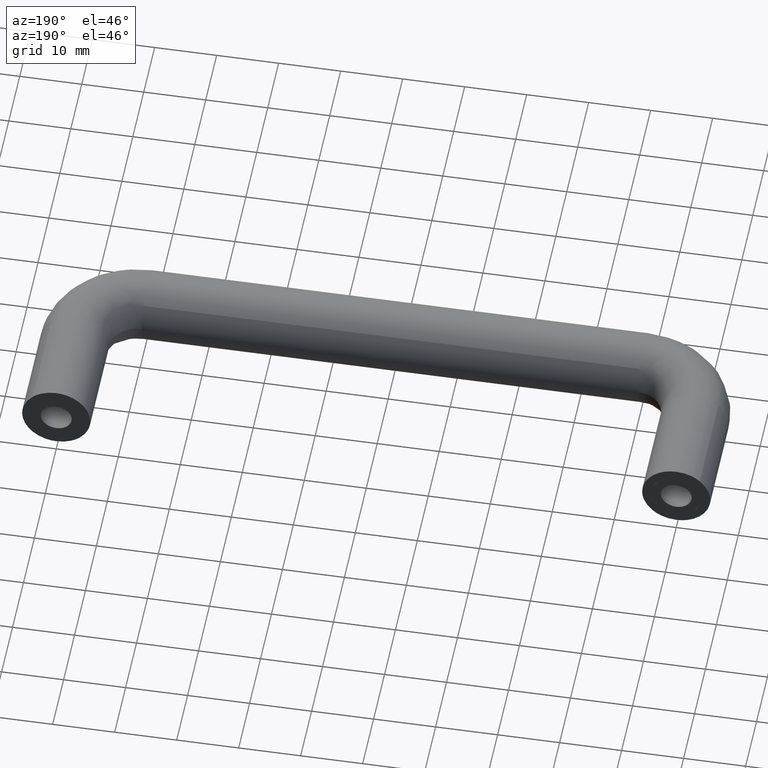
[diagram: clean part render]
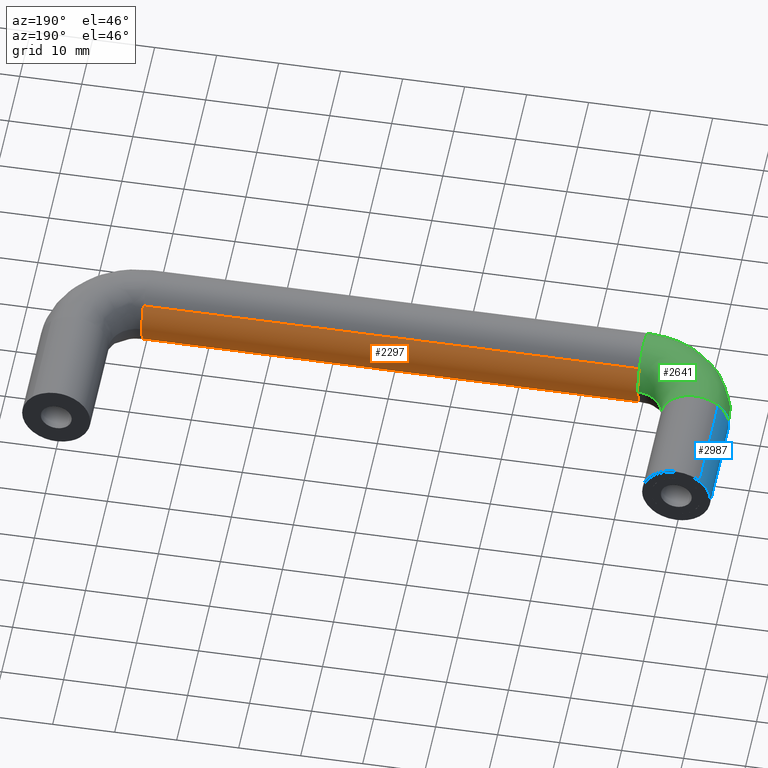
[diagram: same view with three faces highlighted in distinct colors, each labeled with its STEP entity id]
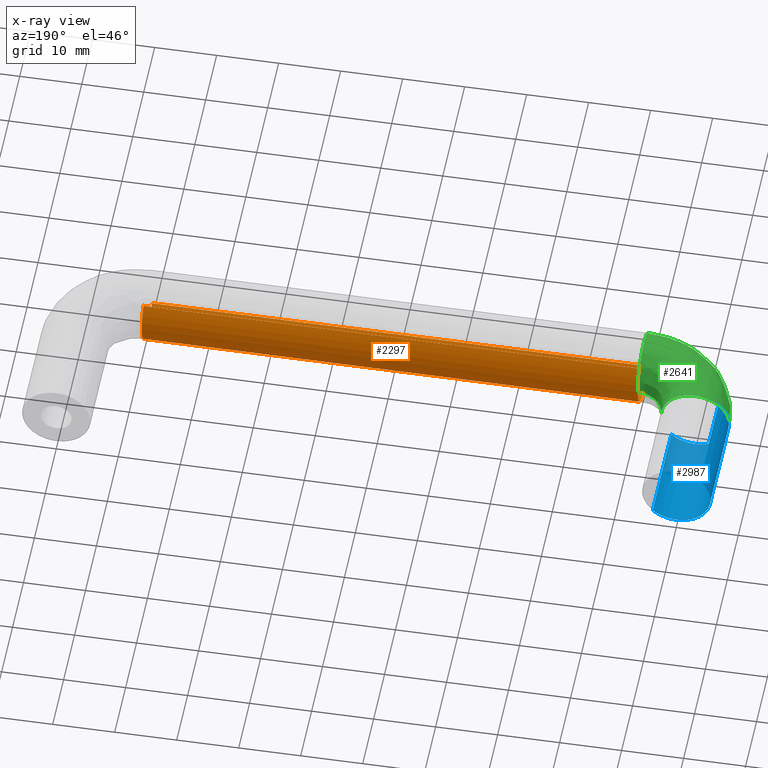
[diagram: x-ray of the same camera — body ghosted, the three highlighted faces saturated]
A machine part, auxiliary view with three faces highlighted in distinct colors.
The next image is the same camera in x-ray (body ghosted, the three faces saturated) — at least one of them is partly hidden behind the body in this view.
Their STEP definitions:

[orange] entity #2297 — the highlighted face is a freeform B-spline surface patch.
#1961=CARTESIAN_POINT('',(89.999994790527055,-21.499999999983569,-4.420587E-016));
#1962=VERTEX_POINT('',#1961);
#1976=CARTESIAN_POINT('',(89.999997298838110,-23.010440925835070,3.785950130926199));
#1977=VERTEX_POINT('',#1976);
#1978=CARTESIAN_POINT('',(89.999994790527055,-21.499999999983569,-4.420587E-016));
#1979=CARTESIAN_POINT('',(89.999995089053442,-21.499582535620291,0.630766519304619));
#1980=CARTESIAN_POINT('',(89.999995645306598,-21.674013615678881,1.630885446807443));
#1981=CARTESIAN_POINT('',(89.999996528553680,-22.276242903782990,2.893662221973532));
#1982=CARTESIAN_POINT('',(89.999997036732267,-22.740916852118399,3.502029512426377));
#1983=CARTESIAN_POINT('',(89.999997298838110,-23.010440925835070,3.785950130926199));
#1984=B_SPLINE_CURVE_WITH_KNOTS('',3,(#1978,#1979,#1980,#1981,#1982,#1983),.UNSPECIFIED.,.F.,.U.,(4,1,1,4),(0.000000028707868,1.892126855888447,3.001300705657795,4.175724669815051),.UNSPECIFIED.);
#1985=EDGE_CURVE('',#1962,#1977,#1984,.T.);
#2044=CARTESIAN_POINT('',(89.999999284689295,-30.989558855102441,-3.785949922371747));
#2045=VERTEX_POINT('',#2044);
#2056=CARTESIAN_POINT('',(89.999997395290492,-26.999998788549469,-5.499999999999867));
#2057=VERTEX_POINT('',#2056);
#2058=CARTESIAN_POINT('',(89.999999284689295,-30.989558855102441,-3.785949922371747));
#2059=CARTESIAN_POINT('',(89.999999155869176,-30.717548375497639,-4.072683681271575));
#2060=CARTESIAN_POINT('',(89.999998936320523,-30.253960925091391,-4.466002333108762));
#2061=CARTESIAN_POINT('',(89.999998491493614,-29.314686384613939,-5.027846515157720));
#2062=CARTESIAN_POINT('',(89.999998000851875,-28.278671813770021,-5.404453792590062));
#2063=CARTESIAN_POINT('',(89.999997582460026,-27.395217149369980,-5.500046842361616));
#2064=CARTESIAN_POINT('',(89.999997395290492,-26.999998788549469,-5.499999999999867));
#2065=B_SPLINE_CURVE_WITH_KNOTS('',3,(#2058,#2059,#2060,#2061,#2062,#2063,#2064),.UNSPECIFIED.,.F.,.U.,(4,1,1,1,4),(0.000000035020038,1.185674218414083,1.813389364962103,3.278036422434957,4.463710605848286),.UNSPECIFIED.);
#2066=EDGE_CURVE('',#2045,#2057,#2065,.T.);
#2068=CARTESIAN_POINT('',(89.999997395290492,-26.999998788549469,-5.499999999999867));
#2069=CARTESIAN_POINT('',(89.999997150212607,-26.482512844814050,-5.500194382752214));
#2070=CARTESIAN_POINT('',(89.999996756037135,-25.650205338174121,-5.381602379248483));
#2071=CARTESIAN_POINT('',(89.999996207239363,-24.491410063625331,-4.934609812305524));
#2072=CARTESIAN_POINT('',(89.999995790620119,-23.611713221921018,-4.377558858743202));
#2073=CARTESIAN_POINT('',(89.999995465335147,-22.924867318311868,-3.723534852909106));
#2074=CARTESIAN_POINT('',(89.999995215763917,-22.397894335690911,-3.048283517251016));
#2075=CARTESIAN_POINT('',(89.999994994328574,-21.930332712216710,-2.223088995686013));
#2076=CARTESIAN_POINT('',(89.999994829574206,-21.582448366572802,-1.169898601455442));
#2077=CARTESIAN_POINT('',(89.999994790501688,-21.499945162138658,-0.382468295907506));
#2078=CARTESIAN_POINT('',(89.999994790527055,-21.499999999983569,-4.420587E-016));
#2079=B_SPLINE_CURVE_WITH_KNOTS('',3,(#2068,#2069,#2070,#2071,#2072,#2073,#2074,#2075,#2076,#2077,#2078),.UNSPECIFIED.,.F.,.U.,(4,1,1,1,1,1,1,1,4),(0.000000121129078,1.552388297675279,2.497342906656587,3.712276537823406,4.657158033757954,5.332135782046844,6.277083893414975,7.492030230088159,8.639433323033613),.UNSPECIFIED.);
#2080=EDGE_CURVE('',#2057,#1962,#2079,.T.);
#2223=CARTESIAN_POINT('',(7.999999999736905,-30.989559040557179,-3.785950166315646));
#2224=CARTESIAN_POINT('',(7.999999999736907,-27.203608874241532,-7.775509206883227));
#2225=CARTESIAN_POINT('',(7.999999999736905,-23.214049833673950,-3.989559040567581));
#2226=CARTESIAN_POINT('',(7.999999999736907,-19.224490793106366,-0.203608874251935));
#2227=CARTESIAN_POINT('',(7.999999999736905,-23.010440959422020,3.785950166315646));
#2228=CARTESIAN_POINT('',(92.050000000063037,-30.989559040557179,-3.785950166315646));
#2229=CARTESIAN_POINT('',(92.050000000063037,-27.203608874241532,-7.775509206883227));
#2230=CARTESIAN_POINT('',(92.050000000063037,-23.214049833673950,-3.989559040567581));
#2231=CARTESIAN_POINT('',(92.050000000063037,-19.224490793106366,-0.203608874251935));
#2232=CARTESIAN_POINT('',(92.050000000063037,-23.010440959422020,3.785950166315646));
#2240=(BOUNDED_SURFACE()B_SPLINE_SURFACE(2,1,((#2223,#2228),(#2224,#2229),(#2225,#2230),(#2226,#2231),(#2227,#2232)),.UNSPECIFIED.,.F.,.F.,.U.)B_SPLINE_SURFACE_WITH_KNOTS((3,2,3),(2,2),(0.0,9.112698372208090,18.225396744416180),(0.0,84.050000000326136),.UNSPECIFIED.)GEOMETRIC_REPRESENTATION_ITEM()RATIONAL_B_SPLINE_SURFACE(((1.0,1.0),(0.707106781186548,0.707106781186548),(1.0,1.0),(0.707106781186548,0.707106781186548),(1.0,1.0)))REPRESENTATION_ITEM('')SURFACE());
#2241=ORIENTED_EDGE('',*,*,#2066,.F.);
#2242=CARTESIAN_POINT('',(9.999999999873081,-30.989558854687839,-3.785949922808328));
#2243=VERTEX_POINT('',#2242);
#2244=CARTESIAN_POINT('',(9.999999999873081,-30.989558854687839,-3.785949922808328));
#2245=CARTESIAN_POINT('',(89.999999284689295,-30.989558855102441,-3.785949922371747));
#2246=QUASI_UNIFORM_CURVE('',1,(#2244,#2245),.UNSPECIFIED.,.F.,.U.);
#2247=EDGE_CURVE('',#2243,#2045,#2246,.T.);
#2248=ORIENTED_EDGE('',*,*,#2247,.F.);
#2249=CARTESIAN_POINT('',(9.999999999819094,-26.999998788552482,-5.499999999999867));
#2250=VERTEX_POINT('',#2249);
#2251=CARTESIAN_POINT('',(9.999999999873081,-30.989558854687839,-3.785949922808328));
#2252=CARTESIAN_POINT('',(9.999999999869841,-30.749532216901471,-4.038919720463778));
#2253=CARTESIAN_POINT('',(9.999999999861467,-30.133132465857120,-4.575758539909313));
#2254=CARTESIAN_POINT('',(9.999999999847827,-29.122420377932809,-5.120839638104645));
#2255=CARTESIAN_POINT('',(9.999999999832880,-28.022906857648650,-5.435651424795697));
#2256=CARTESIAN_POINT('',(9.999999999823848,-27.348726036600262,-5.500037968386583));
#2257=CARTESIAN_POINT('',(9.999999999819094,-26.999998788552482,-5.499999999999867));
#2258=B_SPLINE_CURVE_WITH_KNOTS('',3,(#2251,#2252,#2253,#2254,#2255,#2256,#2257),.UNSPECIFIED.,.F.,.U.,(4,1,1,1,4),(0.000000035019245,1.046181136878325,2.441086695500839,3.417529503364413,4.463710605242854),.UNSPECIFIED.);
#2259=EDGE_CURVE('',#2243,#2250,#2258,.T.);
#2260=ORIENTED_EDGE('',*,*,#2259,.T.);
#2261=CARTESIAN_POINT('',(9.999999999744667,-21.499999999989601,-4.419640E-016));
#2262=VERTEX_POINT('',#2261);
#2263=CARTESIAN_POINT('',(9.999999999819094,-26.999998788552482,-5.499999999999867));
#2264=CARTESIAN_POINT('',(9.999999999813051,-26.550019748065949,-5.500129686792121));
#2265=CARTESIAN_POINT('',(9.999999999804151,-25.897633294907369,-5.419456036741389));
#2266=CARTESIAN_POINT('',(9.999999999791649,-24.972180594215239,-5.132504422196470));
#2267=CARTESIAN_POINT('',(9.999999999782036,-24.257702465410539,-4.794588908478701));
#2268=CARTESIAN_POINT('',(9.999999999770868,-23.439173202544278,-4.233055823004165));
#2269=CARTESIAN_POINT('',(9.999999999761791,-22.766936980932741,-3.560827944745989));
#2270=CARTESIAN_POINT('',(9.999999999753943,-22.179903888642521,-2.705087160750034));
#2271=CARTESIAN_POINT('',(9.999999999746857,-21.661936154531940,-1.574685164114691));
#2272=CARTESIAN_POINT('',(9.999999999744624,-21.499644796525569,-0.607504558879499));
#2273=CARTESIAN_POINT('',(9.999999999744667,-21.499999999989601,-4.419640E-016));
#2274=B_SPLINE_CURVE_WITH_KNOTS('',3,(#2263,#2264,#2265,#2266,#2267,#2268,#2269,#2270,#2271,#2272,#2273),.UNSPECIFIED.,.F.,.U.,(4,1,1,1,1,1,1,1,4),(0.000000121127497,1.349898503220993,1.957368716626248,2.902323327563132,3.712276537821291,4.927161012693494,5.737113931274324,6.817057036695507,8.639433323029950),.UNSPECIFIED.);
#2275=EDGE_CURVE('',#2250,#2262,#2274,.T.);
#2276=ORIENTED_EDGE('',*,*,#2275,.T.);
#2277=CARTESIAN_POINT('',(9.999999999867605,-23.010440926251359,3.785950131361060));
#2278=VERTEX_POINT('',#2277);
#2279=CARTESIAN_POINT('',(9.999999999744667,-21.499999999989601,-4.419640E-016));
#2280=CARTESIAN_POINT('',(9.999999999755259,-21.499886738454329,0.456725222116623));
#2281=CARTESIAN_POINT('',(9.999999999779709,-21.617106474110699,1.391875831001043));
#2282=CARTESIAN_POINT('',(9.999999999822036,-22.137254365226038,2.695723247719012));
#2283=CARTESIAN_POINT('',(9.999999999852619,-22.695990383300909,3.454716881995495));
#2284=CARTESIAN_POINT('',(9.999999999867605,-23.010440926251359,3.785950131361060));
#2285=B_SPLINE_CURVE_WITH_KNOTS('',3,(#2279,#2280,#2281,#2282,#2283,#2284),.UNSPECIFIED.,.F.,.U.,(4,1,1,4),(0.000000028707958,1.370164146732889,2.805560552388104,4.175724670413069),.UNSPECIFIED.);
#2286=EDGE_CURVE('',#2262,#2278,#2285,.T.);
#2287=ORIENTED_EDGE('',*,*,#2286,.T.);
#2288=CARTESIAN_POINT('',(9.999999999867605,-23.010440926251359,3.785950131361060));
#2289=CARTESIAN_POINT('',(89.999997298838110,-23.010440925835070,3.785950130926199));
#2290=QUASI_UNIFORM_CURVE('',1,(#2288,#2289),.UNSPECIFIED.,.F.,.U.);
#2291=EDGE_CURVE('',#2278,#1977,#2290,.T.);
#2292=ORIENTED_EDGE('',*,*,#2291,.T.);
#2293=ORIENTED_EDGE('',*,*,#1985,.F.);
#2294=ORIENTED_EDGE('',*,*,#2080,.F.);
#2295=EDGE_LOOP('',(#2241,#2248,#2260,#2276,#2287,#2292,#2293,#2294));
#2296=FACE_OUTER_BOUND('',#2295,.T.);
#2297=ADVANCED_FACE('',(#2296),#2240,.T.);

[blue] entity #2987 — the highlighted face is a freeform B-spline surface patch.
#2566=CARTESIAN_POINT('',(-5.499999999998872,-16.999995823094832,-6.735335E-016));
#2567=VERTEX_POINT('',#2566);
#2618=CARTESIAN_POINT('',(-3.785950131360987,-16.999997988854972,3.989559073738165));
#2619=VERTEX_POINT('',#2618);
#2629=CARTESIAN_POINT('',(-3.785950131360987,-16.999997988854972,3.989559073738165));
#2630=CARTESIAN_POINT('',(-4.072684983078398,-16.999997776690780,3.717551831426260));
#2631=CARTESIAN_POINT('',(-4.571950902433917,-16.999997363696622,3.129182511704759));
#2632=CARTESIAN_POINT('',(-5.093269707697251,-16.999996798671521,2.162487159022841));
#2633=CARTESIAN_POINT('',(-5.421981005855600,-16.999996276448940,1.115905918499475));
#2634=CARTESIAN_POINT('',(-5.500057061425372,-16.999995973146770,0.395224413446325));
#2635=CARTESIAN_POINT('',(-5.499999999998872,-16.999995823094832,-6.735335E-016));
#2636=B_SPLINE_CURVE_WITH_KNOTS('',3,(#2629,#2630,#2631,#2632,#2633,#2634,#2635),.UNSPECIFIED.,.F.,.U.,(4,1,1,1,4),(0.000000035014806,1.185673928930440,2.301581176913438,3.278035622093565,4.463709516009198),.UNSPECIFIED.);
#2637=EDGE_CURVE('',#2619,#2567,#2636,.T.);
#2672=CARTESIAN_POINT('',(0.000001211437679,-16.999997911839870,-5.499999999999867));
#2673=VERTEX_POINT('',#2672);
#2674=CARTESIAN_POINT('',(-5.499999999998872,-16.999995823094832,-6.735335E-016));
#2675=CARTESIAN_POINT('',(-5.500063172048255,-16.999995823070801,-0.404970562915274));
#2676=CARTESIAN_POINT('',(-5.402704394757319,-16.999995860044990,-1.282404451269414));
#2677=CARTESIAN_POINT('',(-4.990792966374575,-16.999996016477251,-2.411967482995220));
#2678=CARTESIAN_POINT('',(-4.422826467285386,-16.999996232174929,-3.308565356066332));
#2679=CARTESIAN_POINT('',(-3.869918705280671,-16.999996442153630,-3.933857872118311));
#2680=CARTESIAN_POINT('',(-3.183362951232315,-16.999996702888069,-4.518850808678644));
#2681=CARTESIAN_POINT('',(-2.287578983097599,-16.999997043081610,-5.048372602862949));
#2682=CARTESIAN_POINT('',(-1.169895505650755,-16.999997467546301,-5.417562298992621));
#2683=CARTESIAN_POINT('',(-0.382466443077977,-16.999997766589370,-5.500044870206316));
#2684=CARTESIAN_POINT('',(0.000001211437679,-16.999997911839870,-5.499999999999867));
#2685=B_SPLINE_CURVE_WITH_KNOTS('',3,(#2674,#2675,#2676,#2677,#2678,#2679,#2680,#2681,#2682,#2683,#2684),.UNSPECIFIED.,.F.,.U.,(4,1,1,1,1,1,1,1,4),(0.000000120710959,1.214916323066688,2.632328653273003,3.577295173254150,4.387176594642630,5.129648567326703,6.277084885903721,7.492031414489353,8.639434688610267),.UNSPECIFIED.);
#2686=EDGE_CURVE('',#2567,#2673,#2685,.T.);
#2688=CARTESIAN_POINT('',(3.785950339472700,-16.999999349611780,-3.989559293196833));
#2689=VERTEX_POINT('',#2688);
#2690=CARTESIAN_POINT('',(0.000001211437679,-16.999997911839870,-5.499999999999867));
#2691=CARTESIAN_POINT('',(0.587254015728552,-16.999998134858028,-5.500339378701812));
#2692=CARTESIAN_POINT('',(1.565719004488024,-16.999998506445259,-5.341716700638560));
#2693=CARTESIAN_POINT('',(2.839804574596728,-16.999998990298291,-4.761787340351042));
#2694=CARTESIAN_POINT('',(3.486263403968867,-16.999999235801269,-4.274068272221187));
#2695=CARTESIAN_POINT('',(3.785950339472700,-16.999999349611780,-3.989559293196833));
#2696=B_SPLINE_CURVE_WITH_KNOTS('',3,(#2690,#2691,#2692,#2693,#2694,#2695),.UNSPECIFIED.,.F.,.U.,(4,1,1,4),(0.000000028711846,1.761645322914895,2.936051583304519,4.175723573659115),.UNSPECIFIED.);
#2697=EDGE_CURVE('',#2673,#2689,#2696,.T.);
#2870=CARTESIAN_POINT('',(3.785949922808327,-3.885781E-016,-3.989558854698237));
#2871=VERTEX_POINT('',#2870);
#2872=CARTESIAN_POINT('',(3.785949922808327,-3.885781E-016,-3.989558854698237));
#2873=CARTESIAN_POINT('',(3.785950339472700,-16.999999349611780,-3.989559293196833));
#2874=QUASI_UNIFORM_CURVE('',1,(#2872,#2873),.UNSPECIFIED.,.F.,.U.);
#2875=EDGE_CURVE('',#2871,#2689,#2874,.T.);
#2904=CARTESIAN_POINT('',(-3.785949922382049,-3.885781E-016,3.989558855102763));
#2905=VERTEX_POINT('',#2904);
#2915=CARTESIAN_POINT('',(-3.785949922382049,-3.885781E-016,3.989558855102763));
#2916=CARTESIAN_POINT('',(-3.785950131360987,-16.999997988854972,3.989559073738165));
#2917=QUASI_UNIFORM_CURVE('',1,(#2915,#2916),.UNSPECIFIED.,.F.,.U.);
#2918=EDGE_CURVE('',#2905,#2619,#2917,.T.);
#2925=CARTESIAN_POINT('',(-3.785950166315646,0.425000000014600,3.989559040567581));
#2926=CARTESIAN_POINT('',(-7.775509206883227,0.425000000014600,0.203608874251935));
#2927=CARTESIAN_POINT('',(-3.989559040567581,0.425000000014600,-3.785950166315646));
#2928=CARTESIAN_POINT('',(-0.203608874251935,0.425000000014600,-7.775509206883227));
#2929=CARTESIAN_POINT('',(3.785950166315646,0.425000000014600,-3.989559040567581));
#2930=CARTESIAN_POINT('',(-3.785950166315646,-17.435625000598950,3.989559040567581));
#2931=CARTESIAN_POINT('',(-7.775509206883227,-17.435625000598950,0.203608874251935));
#2932=CARTESIAN_POINT('',(-3.989559040567581,-17.435625000598950,-3.785950166315646));
#2933=CARTESIAN_POINT('',(-0.203608874251935,-17.435625000598950,-7.775509206883227));
#2934=CARTESIAN_POINT('',(3.785950166315646,-17.435625000598950,-3.989559040567581));
#2942=(BOUNDED_SURFACE()B_SPLINE_SURFACE(2,1,((#2925,#2930),(#2926,#2931),(#2927,#2932),(#2928,#2933),(#2929,#2934)),.UNSPECIFIED.,.F.,.F.,.U.)B_SPLINE_SURFACE_WITH_KNOTS((3,2,3),(2,2),(0.0,9.112698372208088,18.225396744416180),(0.0,17.860625000613549),.UNSPECIFIED.)GEOMETRIC_REPRESENTATION_ITEM()RATIONAL_B_SPLINE_SURFACE(((1.0,1.0),(0.707106781186548,0.707106781186548),(1.0,1.0),(0.707106781186548,0.707106781186548),(1.0,1.0)))REPRESENTATION_ITEM('')SURFACE());
#2943=ORIENTED_EDGE('',*,*,#2697,.F.);
#2944=ORIENTED_EDGE('',*,*,#2686,.F.);
#2945=ORIENTED_EDGE('',*,*,#2637,.F.);
#2946=ORIENTED_EDGE('',*,*,#2918,.F.);
#2947=CARTESIAN_POINT('',(-5.499999999999867,0.0,-0.000001211437118));
#2948=VERTEX_POINT('',#2947);
#2949=CARTESIAN_POINT('',(-3.785949922382049,-3.885781E-016,3.989558855102763));
#2950=CARTESIAN_POINT('',(-4.173996871329841,-3.527432E-016,3.621639519477811));
#2951=CARTESIAN_POINT('',(-4.754166590046509,-2.807286E-016,2.882260415295427));
#2952=CARTESIAN_POINT('',(-5.353624262969108,-1.471690E-016,1.510994131879092));
#2953=CARTESIAN_POINT('',(-5.500294146071942,-5.434861E-017,0.557999971286713));
#2954=CARTESIAN_POINT('',(-5.499999999999867,0.0,-0.000001211437118));
#2955=B_SPLINE_CURVE_WITH_KNOTS('',3,(#2949,#2950,#2951,#2952,#2953,#2954),.UNSPECIFIED.,.F.,.U.,(4,1,1,4),(0.000000035018964,1.604152471604997,2.789807195824196,4.463710605830541),.UNSPECIFIED.);
#2956=EDGE_CURVE('',#2905,#2948,#2955,.T.);
#2957=ORIENTED_EDGE('',*,*,#2956,.T.);
#2958=CARTESIAN_POINT('',(0.0,0.0,-5.500000000000000));
#2959=VERTEX_POINT('',#2958);
#2960=CARTESIAN_POINT('',(-5.499999999999867,0.0,-0.000001211437118));
#2961=CARTESIAN_POINT('',(-5.500275986935168,0.0,-0.540006236550243));
#2962=CARTESIAN_POINT('',(-5.386375451744979,0.0,-1.304775468941080));
#2963=CARTESIAN_POINT('',(-4.970168195931266,0.0,-2.424631905008403));
#2964=CARTESIAN_POINT('',(-4.451521088297848,0.0,-3.302116271395947));
#2965=CARTESIAN_POINT('',(-3.712925618572237,0.0,-4.097103538271920));
#2966=CARTESIAN_POINT('',(-2.882838872145862,0.0,-4.720694632167060));
#2967=CARTESIAN_POINT('',(-1.991058125069044,0.0,-5.162755665805083));
#2968=CARTESIAN_POINT('',(-0.989911994235949,0.0,-5.439764097749090));
#2969=CARTESIAN_POINT('',(-0.337472997966175,0.0,-5.500031976902027));
#2970=CARTESIAN_POINT('',(0.0,0.0,-5.500000000000000));
#2971=B_SPLINE_CURVE_WITH_KNOTS('',3,(#2960,#2961,#2962,#2963,#2964,#2965,#2966,#2967,#2968,#2969,#2970),.UNSPECIFIED.,.F.,.U.,(4,1,1,1,1,1,1,1,4),(0.000000121132809,1.619892835452266,2.294852423901075,3.577294608334221,4.657158033758558,5.534624620948923,6.682066155091198,7.627014265994213,8.639433323029904),.UNSPECIFIED.);
#2972=EDGE_CURVE('',#2948,#2959,#2971,.T.);
#2973=ORIENTED_EDGE('',*,*,#2972,.T.);
#2974=CARTESIAN_POINT('',(0.0,0.0,-5.500000000000000));
#2975=CARTESIAN_POINT('',(0.391477375142764,-4.018001E-017,-5.500064228811420));
#2976=CARTESIAN_POINT('',(1.109143399745959,-1.138390E-016,-5.423049250909813));
#2977=CARTESIAN_POINT('',(2.047083842848362,-2.101063E-016,-5.130323865410255));
#2978=CARTESIAN_POINT('',(2.944616254088261,-3.022262E-016,-4.682682878265067));
#2979=CARTESIAN_POINT('',(3.486263929938964,-3.578192E-016,-4.274071193445455));
#2980=CARTESIAN_POINT('',(3.785949922808327,-3.885781E-016,-3.989558854698237));
#2981=B_SPLINE_CURVE_WITH_KNOTS('',3,(#2974,#2975,#2976,#2977,#2978,#2979,#2980),.UNSPECIFIED.,.F.,.U.,(4,1,1,1,4),(0.000000028705074,1.174423960607387,2.153089971328474,2.936052273396637,4.175724555100175),.UNSPECIFIED.);
#2982=EDGE_CURVE('',#2959,#2871,#2981,.T.);
#2983=ORIENTED_EDGE('',*,*,#2982,.T.);
#2984=ORIENTED_EDGE('',*,*,#2875,.T.);
#2985=EDGE_LOOP('',(#2943,#2944,#2945,#2946,#2957,#2973,#2983,#2984));
#2986=FACE_OUTER_BOUND('',#2985,.T.);
#2987=ADVANCED_FACE('',(#2986),#2942,.T.);

[green] entity #2641 — the highlighted face is a freeform B-spline surface patch.
#2261=CARTESIAN_POINT('',(9.999999999744667,-21.499999999989601,-4.419640E-016));
#2262=VERTEX_POINT('',#2261);
#2277=CARTESIAN_POINT('',(9.999999999867605,-23.010440926251359,3.785950131361060));
#2278=VERTEX_POINT('',#2277);
#2279=CARTESIAN_POINT('',(9.999999999744667,-21.499999999989601,-4.419640E-016));
#2280=CARTESIAN_POINT('',(9.999999999755259,-21.499886738454329,0.456725222116623));
#2281=CARTESIAN_POINT('',(9.999999999779709,-21.617106474110699,1.391875831001043));
#2282=CARTESIAN_POINT('',(9.999999999822036,-22.137254365226038,2.695723247719012));
#2283=CARTESIAN_POINT('',(9.999999999852619,-22.695990383300909,3.454716881995495));
#2284=CARTESIAN_POINT('',(9.999999999867605,-23.010440926251359,3.785950131361060));
#2285=B_SPLINE_CURVE_WITH_KNOTS('',3,(#2279,#2280,#2281,#2282,#2283,#2284),.UNSPECIFIED.,.F.,.U.,(4,1,1,4),(0.000000028707958,1.370164146732889,2.805560552388104,4.175724670413069),.UNSPECIFIED.);
#2286=EDGE_CURVE('',#2262,#2278,#2285,.T.);
#2320=CARTESIAN_POINT('',(10.0,-26.999999999989601,5.500000000000000));
#2321=VERTEX_POINT('',#2320);
#2322=CARTESIAN_POINT('',(9.999999999867605,-23.010440926251359,3.785950131361060));
#2323=CARTESIAN_POINT('',(9.999999999879048,-23.250467799035981,4.038920241081647));
#2324=CARTESIAN_POINT('',(9.999999999905830,-23.866867039692281,4.575757044493593));
#2325=CARTESIAN_POINT('',(9.999999999941915,-24.877578573187570,5.120842703011409));
#2326=CARTESIAN_POINT('',(9.999999999974802,-25.977093139127071,5.435645817733579));
#2327=CARTESIAN_POINT('',(9.999999999991887,-26.651271925940240,5.500042449196286));
#2328=CARTESIAN_POINT('',(10.0,-26.999999999989601,5.500000000000000));
#2329=B_SPLINE_CURVE_WITH_KNOTS('',3,(#2322,#2323,#2324,#2325,#2326,#2327,#2328),.UNSPECIFIED.,.F.,.U.,(4,1,1,1,4),(0.000000035016079,1.046180881597005,2.441086099844327,3.417528669427553,4.463709516009164),.UNSPECIFIED.);
#2330=EDGE_CURVE('',#2278,#2321,#2329,.T.);
#2332=CARTESIAN_POINT('',(9.999999999893522,-32.499999999989598,-6.735335E-016));
#2333=VERTEX_POINT('',#2332);
#2334=CARTESIAN_POINT('',(10.0,-26.999999999989601,5.500000000000000));
#2335=CARTESIAN_POINT('',(9.999999999996948,-27.314968421135909,5.500014721346220));
#2336=CARTESIAN_POINT('',(9.999999999989390,-28.034914371888320,5.438017617955295));
#2337=CARTESIAN_POINT('',(9.999999999974449,-29.230713345872701,5.091440074642777));
#2338=CARTESIAN_POINT('',(9.999999999957607,-30.326146239675040,4.443945828187533));
#2339=CARTESIAN_POINT('',(9.999999999942407,-31.123134648145019,3.675489527473059));
#2340=CARTESIAN_POINT('',(9.999999999930537,-31.651332962480399,2.972361551911824));
#2341=CARTESIAN_POINT('',(9.999999999917762,-32.114183056576842,2.119296358087973));
#2342=CARTESIAN_POINT('',(9.999999999904874,-32.429427036728733,1.102423726611293));
#2343=CARTESIAN_POINT('',(9.999999999896794,-32.500024255590283,0.337469225306783));
#2344=CARTESIAN_POINT('',(9.999999999893522,-32.499999999989598,-6.735335E-016));
#2345=B_SPLINE_CURVE_WITH_KNOTS('',3,(#2334,#2335,#2336,#2337,#2338,#2339,#2340,#2341,#2342,#2343,#2344),.UNSPECIFIED.,.F.,.U.,(4,1,1,1,1,1,1,1,4),(0.000000120919900,0.944916700280082,2.159859307134513,3.712276831383561,4.724676596645427,5.467120250703147,6.344582949207419,7.627014869042590,8.639434005820240),.UNSPECIFIED.);
#2346=EDGE_CURVE('',#2321,#2333,#2345,.T.);
#2537=CARTESIAN_POINT('',(-5.462881406599398,-15.927946547291246,-0.153762057305220));
#2538=CARTESIAN_POINT('',(-6.695593203846713,-33.708101334698597,-0.153762057305220));
#2539=CARTESIAN_POINT('',(11.083633411053464,-32.462074202063810,-0.153762057305220));
#2540=CARTESIAN_POINT('',(-5.462881406599398,-15.927946547291246,-0.077328764515603));
#2541=CARTESIAN_POINT('',(-6.695593203846713,-33.708101334698597,-0.077328764515603));
#2542=CARTESIAN_POINT('',(11.083633411053469,-32.462074202063810,-0.077328764515603));
#2543=CARTESIAN_POINT('',(-5.462881406599399,-15.927946547291254,5.499999999999998));
#2544=CARTESIAN_POINT('',(-6.695593203846714,-33.708101334698583,5.499999999999998));
#2545=CARTESIAN_POINT('',(11.083633411053462,-32.462074202063796,5.499999999999999));
#2546=CARTESIAN_POINT('',(0.023947479613291,-16.308352611151950,5.499999999999998));
#2547=CARTESIAN_POINT('',(-0.771350454094655,-27.779420215930880,5.499999999999999));
#2548=CARTESIAN_POINT('',(10.699118329711911,-26.975531743263275,5.499999999999998));
#2549=CARTESIAN_POINT('',(5.510776365825982,-16.688758675012657,5.499999999999998));
#2550=CARTESIAN_POINT('',(5.152892295657404,-21.850739097163185,5.499999999999998));
#2551=CARTESIAN_POINT('',(10.314603248370361,-21.488989284462765,5.499999999999999));
#2552=CARTESIAN_POINT('',(5.510776365825981,-16.688758675012657,-0.077328764515604));
#2553=CARTESIAN_POINT('',(5.152892295657407,-21.850739097163181,-0.077328764515604));
#2554=CARTESIAN_POINT('',(10.314603248370362,-21.488989284462761,-0.077328764515604));
#2555=CARTESIAN_POINT('',(5.510776365825981,-16.688758675012654,-0.153762057305221));
#2556=CARTESIAN_POINT('',(5.152892295657406,-21.850739097163178,-0.153762057305221));
#2557=CARTESIAN_POINT('',(10.314603248370362,-21.488989284462754,-0.153762057305221));
#2565=(BOUNDED_SURFACE()B_SPLINE_SURFACE(2,2,((#2537,#2540,#2543,#2546,#2549,#2552,#2555),(#2538,#2541,#2544,#2547,#2550,#2553,#2556),(#2539,#2542,#2545,#2548,#2551,#2554,#2557)),.UNSPECIFIED.,.F.,.F.,.U.)B_SPLINE_SURFACE_WITH_KNOTS((3,3),(3,1,2,1,3),(0.0,28.246576867094841),(0.0,0.182253967444162,9.294952339652250,18.407650711860342,18.589904679304500),.UNSPECIFIED.)GEOMETRIC_REPRESENTATION_ITEM()RATIONAL_B_SPLINE_SURFACE(((0.932283974128833,0.926886021991280,0.651590462976073,0.921488069853727,0.651590462976073,0.926886021991280,0.932283974128833),(0.608398349254636,0.604875704587370,0.425220826556786,0.601353059920104,0.425220826556786,0.604875704587370,0.608398349254636),(0.921984269463391,0.916645952924387,0.644391809435189,0.911307636385383,0.644391809435189,0.916645952924387,0.921984269463391)))REPRESENTATION_ITEM('')SURFACE());
#2566=CARTESIAN_POINT('',(-5.499999999998872,-16.999995823094832,-6.735335E-016));
#2567=VERTEX_POINT('',#2566);
#2568=CARTESIAN_POINT('',(-5.499999999998872,-16.999995823094832,-6.735335E-016));
#2569=CARTESIAN_POINT('',(-5.500088810981096,-17.919365233648069,-6.735335E-016));
#2570=CARTESIAN_POINT('',(-5.367015257662652,-19.409332965695722,-6.735335E-016));
#2571=CARTESIAN_POINT('',(-4.802178109634611,-21.788011388863691,-6.735335E-016));
#2572=CARTESIAN_POINT('',(-4.033796201589579,-23.709440453260122,-6.735335E-016));
#2573=CARTESIAN_POINT('',(-2.952432179114350,-25.577777769623061,-6.735335E-016));
#2574=CARTESIAN_POINT('',(-1.565417723360539,-27.436365544683930,-6.735335E-016));
#2575=CARTESIAN_POINT('',(0.310555583544458,-29.211473476762261,-6.735335E-016));
#2576=CARTESIAN_POINT('',(2.340232968575761,-30.522878221099120,-6.735335E-016));
#2577=CARTESIAN_POINT('',(4.142629507876071,-31.388881751143490,-6.735335E-016));
#2578=CARTESIAN_POINT('',(6.576336350530368,-32.226394592453531,-6.735335E-016));
#2579=CARTESIAN_POINT('',(8.636755947393233,-32.500390937467827,-6.735335E-016));
#2580=CARTESIAN_POINT('',(9.999999999893522,-32.499999999989598,-6.735335E-016));
#2581=B_SPLINE_CURVE_WITH_KNOTS('',3,(#2568,#2569,#2570,#2571,#2572,#2573,#2574,#2575,#2576,#2577,#2578,#2579,#2580),.UNSPECIFIED.,.F.,.U.,(4,1,1,1,1,1,1,1,1,1,4),(0.000000070207463,2.758092478381169,4.470024954024503,7.323246337253796,8.940061786849489,10.937335158682680,14.266016323288300,16.643711694019188,18.165430536316819,20.257785168444560,24.347383613347908),.UNSPECIFIED.);
#2582=EDGE_CURVE('',#2567,#2333,#2581,.T.);
#2583=ORIENTED_EDGE('',*,*,#2582,.T.);
#2584=ORIENTED_EDGE('',*,*,#2346,.F.);
#2585=ORIENTED_EDGE('',*,*,#2330,.F.);
#2586=ORIENTED_EDGE('',*,*,#2286,.F.);
#2587=CARTESIAN_POINT('',(5.500000000000000,-17.000000000583992,-4.421545E-016));
#2588=VERTEX_POINT('',#2587);
#2589=CARTESIAN_POINT('',(5.500000000000000,-17.000000000583992,-4.421545E-016));
#2590=CARTESIAN_POINT('',(5.499975541240161,-17.276117469528899,-5.067086E-016));
#2591=CARTESIAN_POINT('',(5.550990270815104,-17.828336714411680,-6.238739E-016));
#2592=CARTESIAN_POINT('',(5.807928788291322,-18.735441249382450,-7.758534E-016));
#2593=CARTESIAN_POINT('',(6.347651209164965,-19.730768221319650,-8.823380E-016));
#2594=CARTESIAN_POINT('',(7.080588983030421,-20.472810738044721,-8.844354E-016));
#2595=CARTESIAN_POINT('',(7.853688294819091,-20.975474429464260,-8.211825E-016));
#2596=CARTESIAN_POINT('',(8.730021720813731,-21.370614344083851,-7.086560E-016));
#2597=CARTESIAN_POINT('',(9.502954418769177,-21.500275256279121,-5.582445E-016));
#2598=CARTESIAN_POINT('',(9.999999999744667,-21.499999999989601,-4.419640E-016));
#2599=B_SPLINE_CURVE_WITH_KNOTS('',3,(#2589,#2590,#2591,#2592,#2593,#2594,#2595,#2596,#2597,#2598),.UNSPECIFIED.,.F.,.U.,(4,1,1,1,1,1,1,4),(0.000000130221804,0.828355373569884,1.656709433781974,2.816415578964723,4.196970587182561,4.749219938471706,5.577596444344103,7.068627822468780),.UNSPECIFIED.);
#2600=EDGE_CURVE('',#2588,#2262,#2599,.T.);
#2601=ORIENTED_EDGE('',*,*,#2600,.F.);
#2602=CARTESIAN_POINT('',(0.0,-16.999999999989601,5.500000000000000));
#2603=VERTEX_POINT('',#2602);
#2604=CARTESIAN_POINT('',(5.500000000000000,-17.000000000583992,-4.421545E-016));
#2605=CARTESIAN_POINT('',(5.500052138429635,-17.000000000563329,0.382468396822121));
#2606=CARTESIAN_POINT('',(5.415210006830447,-17.000000000514952,1.192407044377020));
#2607=CARTESIAN_POINT('',(5.067856392873896,-17.000000000440551,2.222686018565456));
#2608=CARTESIAN_POINT('',(4.534063739692170,-17.000000000360760,3.164850551681977));
#2609=CARTESIAN_POINT('',(3.840164884548482,-17.000000000278192,3.999998725801510));
#2610=CARTESIAN_POINT('',(2.943029346594440,-17.000000000192308,4.691299590545965));
#2611=CARTESIAN_POINT('',(2.029765935822713,-17.000000000118909,5.136943508617507));
#2612=CARTESIAN_POINT('',(1.079886917366092,-17.000000000051990,5.425097562544032));
#2613=CARTESIAN_POINT('',(0.404974242258562,-17.000000000011489,5.500074412454319));
#2614=CARTESIAN_POINT('',(0.0,-16.999999999989601,5.500000000000000));
#2615=B_SPLINE_CURVE_WITH_KNOTS('',3,(#2604,#2605,#2606,#2607,#2608,#2609,#2610,#2611,#2612,#2613,#2614),.UNSPECIFIED.,.F.,.U.,(4,1,1,1,1,1,1,1,4),(0.000000120921603,1.147409312418182,2.429841470859113,3.239793234106595,4.387176248211264,5.669611197551312,6.614568123782830,7.424526014211695,8.639434005820240),.UNSPECIFIED.);
#2616=EDGE_CURVE('',#2588,#2603,#2615,.T.);
#2617=ORIENTED_EDGE('',*,*,#2616,.T.);
#2618=CARTESIAN_POINT('',(-3.785950131360987,-16.999997988854972,3.989559073738165));
#2619=VERTEX_POINT('',#2618);
#2620=CARTESIAN_POINT('',(0.0,-16.999999999989601,5.500000000000000));
#2621=CARTESIAN_POINT('',(-0.587247800923035,-16.999999777126519,5.500330464569303));
#2622=CARTESIAN_POINT('',(-1.587477072224518,-16.999999335763452,5.338215297136896));
#2623=CARTESIAN_POINT('',(-2.858916106652401,-16.999998629752159,4.750349712700669));
#2624=CARTESIAN_POINT('',(-3.502026188161446,-16.999998199007450,4.259078877922055));
#2625=CARTESIAN_POINT('',(-3.785950131360987,-16.999997988854972,3.989559073738165));
#2626=B_SPLINE_CURVE_WITH_KNOTS('',3,(#2620,#2621,#2622,#2623,#2624,#2625),.UNSPECIFIED.,.F.,.U.,(4,1,1,4),(0.000000028708288,1.761645785629772,3.001300706088014,4.175724670413525),.UNSPECIFIED.);
#2627=EDGE_CURVE('',#2603,#2619,#2626,.T.);
#2628=ORIENTED_EDGE('',*,*,#2627,.T.);
#2629=CARTESIAN_POINT('',(-3.785950131360987,-16.999997988854972,3.989559073738165));
#2630=CARTESIAN_POINT('',(-4.072684983078398,-16.999997776690780,3.717551831426260));
#2631=CARTESIAN_POINT('',(-4.571950902433917,-16.999997363696622,3.129182511704759));
#2632=CARTESIAN_POINT('',(-5.093269707697251,-16.999996798671521,2.162487159022841));
#2633=CARTESIAN_POINT('',(-5.421981005855600,-16.999996276448940,1.115905918499475));
#2634=CARTESIAN_POINT('',(-5.500057061425372,-16.999995973146770,0.395224413446325));
#2635=CARTESIAN_POINT('',(-5.499999999998872,-16.999995823094832,-6.735335E-016));
#2636=B_SPLINE_CURVE_WITH_KNOTS('',3,(#2629,#2630,#2631,#2632,#2633,#2634,#2635),.UNSPECIFIED.,.F.,.U.,(4,1,1,1,4),(0.000000035014806,1.185673928930440,2.301581176913438,3.278035622093565,4.463709516009198),.UNSPECIFIED.);
#2637=EDGE_CURVE('',#2619,#2567,#2636,.T.);
#2638=ORIENTED_EDGE('',*,*,#2637,.T.);
#2639=EDGE_LOOP('',(#2583,#2584,#2585,#2586,#2601,#2617,#2628,#2638));
#2640=FACE_OUTER_BOUND('',#2639,.T.);
#2641=ADVANCED_FACE('',(#2640),#2565,.T.);